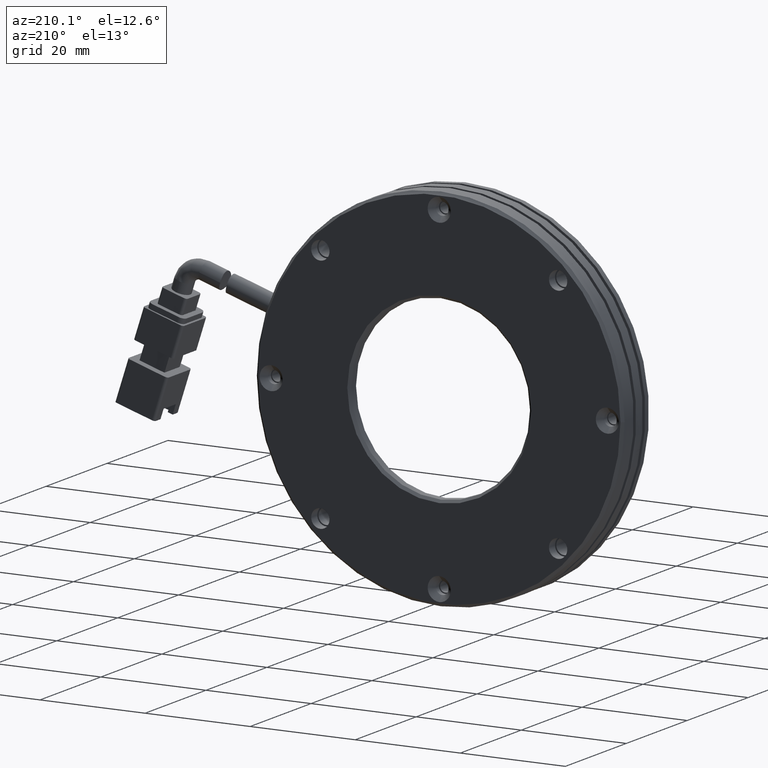
[diagram: clean part render]
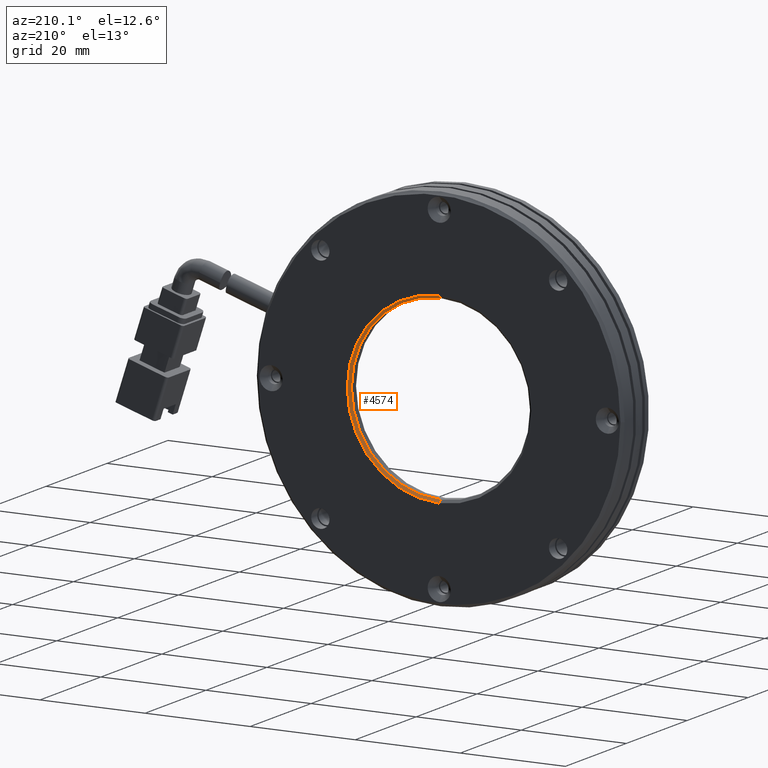
[diagram: same view with one face highlighted and labeled with its STEP entity id]
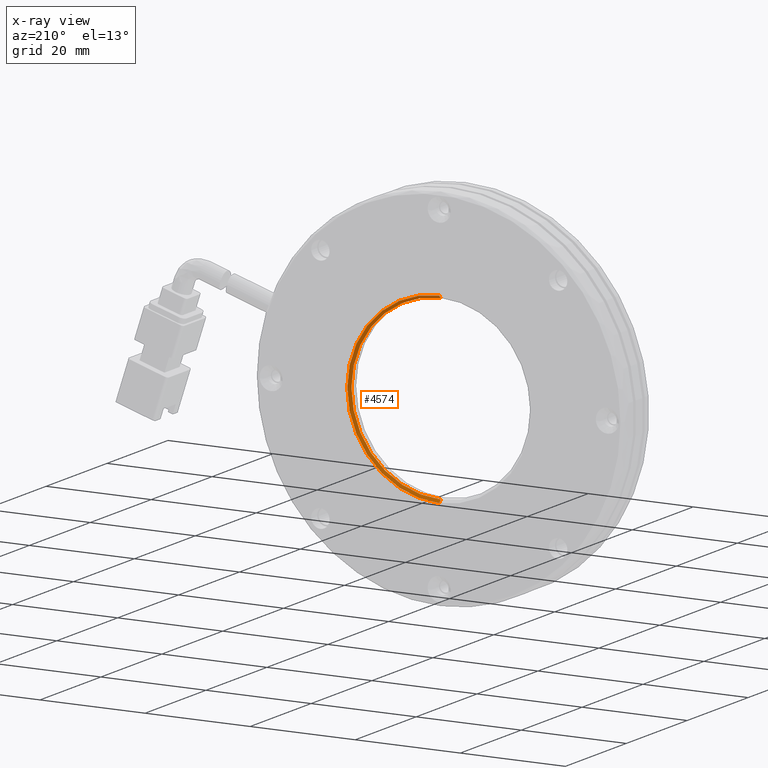
[diagram: x-ray of the same camera — body ghosted, the highlighted face saturated]
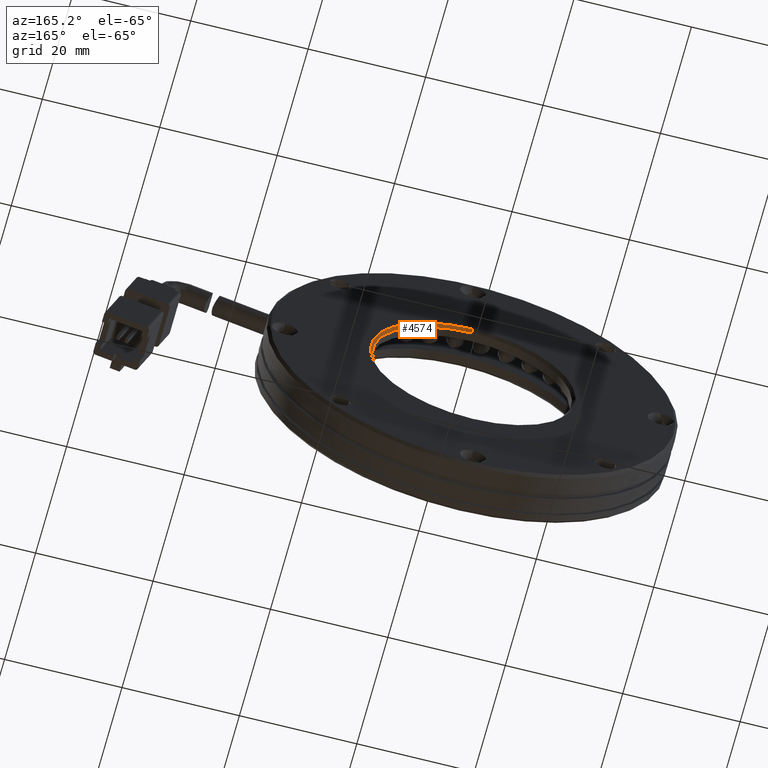
[diagram: same view with one face highlighted and labeled with its STEP entity id]
A machine part, auxiliary view. The second image highlights one B-rep face of the part: STEP entity #4574.
The next image is the same camera in x-ray: the body ghosted, the highlighted face saturated — about 0% of this face is hidden behind the body in this view.
A second angle (auxiliary view) of the same face is appended — the face is thin or edge-on in the first view.
In plain terms, the highlighted conical surface has half-angle 45 deg.
Its self-contained STEP definition (entity closure, byte-faithful):
#496 = VERTEX_POINT ( 'NONE', #3821 ) ;
#672 = ORIENTED_EDGE ( 'NONE', *, *, #14135, .F. ) ;
#924 = VERTEX_POINT ( 'NONE', #30244 ) ;
#1092 = AXIS2_PLACEMENT_3D ( 'NONE', #11440, #33305, #14572 ) ;
#2025 = DIRECTION ( 'NONE',  ( 0.0000000000000000000, 0.0000000000000000000, 1.000000000000000000 ) ) ;
#3821 = CARTESIAN_POINT ( 'NONE',  ( -5.709292144904342300, 13.26020291540425200, 17.49999999999998900 ) ) ;
#4574 = ADVANCED_FACE ( 'NONE', ( #20444 ), #33206, .F. ) ;
#7091 = CARTESIAN_POINT ( 'NONE',  ( -5.709292144904342300, 13.26020291540425200, 17.49999999999998900 ) ) ;
#7389 = EDGE_CURVE ( 'NONE', #34719, #924, #22258, .T. ) ;
#7899 = VERTEX_POINT ( 'NONE', #10604 ) ;
#8716 = EDGE_CURVE ( 'NONE', #34719, #496, #18691, .T. ) ;
#10396 = CARTESIAN_POINT ( 'NONE',  ( -5.709292144904340600, 13.26020291540425200, -17.50000000000002800 ) ) ;
#10604 = CARTESIAN_POINT ( 'NONE',  ( -5.709292144904340600, 13.26020291540425200, -17.50000000000002800 ) ) ;
#11440 = CARTESIAN_POINT ( 'NONE',  ( -5.709292144904342300, 12.76020291540426400, -2.081668171172168500E-014 ) ) ;
#11826 = EDGE_CURVE ( 'NONE', #496, #7899, #26397, .T. ) ;
#14135 = EDGE_CURVE ( 'NONE', #924, #7899, #33358, .T. ) ;
#14572 = DIRECTION ( 'NONE',  ( 0.0000000000000000000, 0.0000000000000000000, 1.000000000000000000 ) ) ;
#15947 = ORIENTED_EDGE ( 'NONE', *, *, #8716, .T. ) ;
#18691 = LINE ( 'NONE', #7091, #34370 ) ;
#20444 = FACE_OUTER_BOUND ( 'NONE', #36220, .T. ) ;
#20524 = DIRECTION ( 'NONE',  ( -0.0000000000000000000, 1.000000000000000000, 0.0000000000000000000 ) ) ;
#22258 = CIRCLE ( 'NONE', #1092, 17.00000000000000700 ) ;
#25028 = VECTOR ( 'NONE', #35330, 999.9999999999998900 ) ;
#25406 = DIRECTION ( 'NONE',  ( 0.0000000000000000000, 0.7071067811865425800, 0.7071067811865525700 ) ) ;
#26159 = AXIS2_PLACEMENT_3D ( 'NONE', #36384, #36186, #35503 ) ;
#26397 = CIRCLE ( 'NONE', #38380, 17.50000000000000700 ) ;
#27463 = CARTESIAN_POINT ( 'NONE',  ( -5.709292144904340600, 12.76020291540426400, 16.99999999999998600 ) ) ;
#27625 = ORIENTED_EDGE ( 'NONE', *, *, #7389, .F. ) ;
#30244 = CARTESIAN_POINT ( 'NONE',  ( -5.709292144904342300, 12.76020291540426400, -17.00000000000002800 ) ) ;
#33206 = CONICAL_SURFACE ( 'NONE', #26159, 17.50000000000000700, 0.7853981633974552700 ) ;
#33305 = DIRECTION ( 'NONE',  ( -0.0000000000000000000, 1.000000000000000000, -0.0000000000000000000 ) ) ;
#33358 = LINE ( 'NONE', #10396, #25028 ) ;
#34370 = VECTOR ( 'NONE', #25406, 999.9999999999998900 ) ;
#34719 = VERTEX_POINT ( 'NONE', #27463 ) ;
#35330 = DIRECTION ( 'NONE',  ( 8.659560562354994500E-017, 0.7071067811865425800, -0.7071067811865525700 ) ) ;
#35503 = DIRECTION ( 'NONE',  ( 0.0000000000000000000, 0.0000000000000000000, 1.000000000000000000 ) ) ;
#36186 = DIRECTION ( 'NONE',  ( -0.0000000000000000000, 1.000000000000000000, 0.0000000000000000000 ) ) ;
#36220 = EDGE_LOOP ( 'NONE', ( #672, #27625, #15947, #39660 ) ) ;
#36384 = CARTESIAN_POINT ( 'NONE',  ( -5.709292144904342300, 13.26020291540425200, -2.081668171172168500E-014 ) ) ;
#38380 = AXIS2_PLACEMENT_3D ( 'NONE', #39240, #20524, #2025 ) ;
#39240 = CARTESIAN_POINT ( 'NONE',  ( -5.709292144904342300, 13.26020291540425200, -2.081668171172168500E-014 ) ) ;
#39660 = ORIENTED_EDGE ( 'NONE', *, *, #11826, .T. ) ;